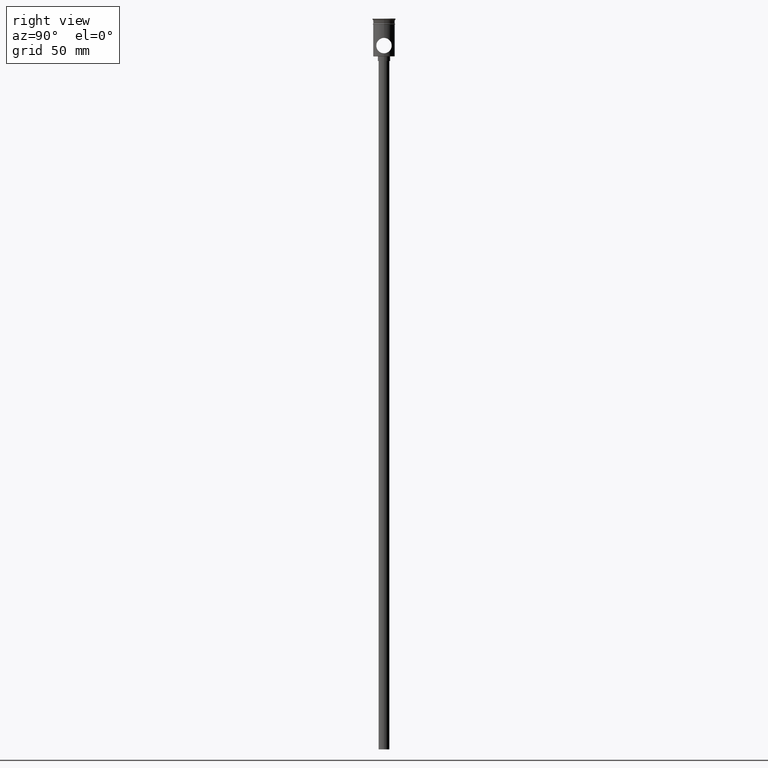
[diagram: clean part render]
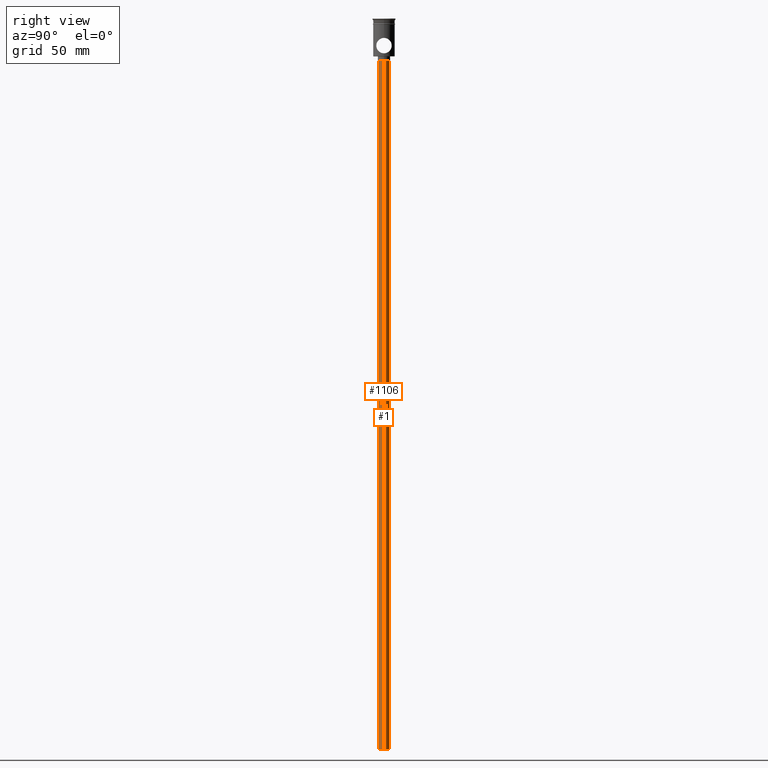
[diagram: same view with one multi-face feature highlighted, each face labeled with its STEP entity id]
A machine part, right view. The highlighted faces form ONE feature: a constant-radius fillet chain: 2 tangent blend faces with common blend radius 3.5 mm. The faces share edges in the B-rep.
Their STEP definitions:
[1] entity #1106 (Cylinder):
#76 = EDGE_CURVE ( 'NONE', #839, #674, #698, .T. ) ;
#90 = CARTESIAN_POINT ( 'NONE',  ( -3.500000000000000444, 4.286263797015737088E-16, -474.5000000000000568 ) ) ;
#95 = FACE_OUTER_BOUND ( 'NONE', #452, .T. ) ;
#107 = DIRECTION ( 'NONE',  ( -1.000000000000000000, 0.000000000000000000, 0.000000000000000000 ) ) ;
#108 = DIRECTION ( 'NONE',  ( 1.000000000000000000, 0.000000000000000000, 0.000000000000000000 ) ) ;
#119 = CARTESIAN_POINT ( 'NONE',  ( 3.500000000000000444, 0.000000000000000000, -27.50000000000000000 ) ) ;
#246 = LINE ( 'NONE', #1268, #1243 ) ;
#270 = EDGE_CURVE ( 'NONE', #1189, #839, #1049, .T. ) ;
#335 = DIRECTION ( 'NONE',  ( -0.000000000000000000, -0.000000000000000000, 1.000000000000000000 ) ) ;
#452 = EDGE_LOOP ( 'NONE', ( #935, #811, #1167, #1404 ) ) ;
#516 = DIRECTION ( 'NONE',  ( -0.000000000000000000, -0.000000000000000000, 1.000000000000000000 ) ) ;
#538 = EDGE_CURVE ( 'NONE', #1179, #674, #1216, .T. ) ;
#661 = AXIS2_PLACEMENT_3D ( 'NONE', #1473, #1368, #108 ) ;
#674 = VERTEX_POINT ( 'NONE', #1434 ) ;
#698 = LINE ( 'NONE', #736, #1125 ) ;
#710 = CARTESIAN_POINT ( 'NONE',  ( 3.500000000000000444, 0.000000000000000000, -474.5000000000000568 ) ) ;
#736 = CARTESIAN_POINT ( 'NONE',  ( -3.500000000000000444, 4.286263797015737088E-16, -474.5000000000000568 ) ) ;
#811 = ORIENTED_EDGE ( 'NONE', *, *, #270, .F. ) ;
#839 = VERTEX_POINT ( 'NONE', #90 ) ;
#883 = DIRECTION ( 'NONE',  ( 0.000000000000000000, 0.000000000000000000, -1.000000000000000000 ) ) ;
#935 = ORIENTED_EDGE ( 'NONE', *, *, #76, .F. ) ;
#997 = AXIS2_PLACEMENT_3D ( 'NONE', #1461, #883, #1143 ) ;
#1006 = DIRECTION ( 'NONE',  ( 0.000000000000000000, 0.000000000000000000, -1.000000000000000000 ) ) ;
#1007 = CYLINDRICAL_SURFACE ( 'NONE', #661, 3.500000000000000444 ) ;
#1049 = CIRCLE ( 'NONE', #1416, 3.500000000000000444 ) ;
#1106 = ADVANCED_FACE ( 'NONE', ( #95 ), #1007, .T. ) ;
#1113 = EDGE_CURVE ( 'NONE', #1189, #1179, #246, .T. ) ;
#1125 = VECTOR ( 'NONE', #516, 1000.000000000000000 ) ;
#1143 = DIRECTION ( 'NONE',  ( -1.000000000000000000, 0.000000000000000000, 0.000000000000000000 ) ) ;
#1162 = CARTESIAN_POINT ( 'NONE',  ( 0.000000000000000000, 0.000000000000000000, -474.5000000000000568 ) ) ;
#1167 = ORIENTED_EDGE ( 'NONE', *, *, #1113, .T. ) ;
#1179 = VERTEX_POINT ( 'NONE', #119 ) ;
#1189 = VERTEX_POINT ( 'NONE', #710 ) ;
#1216 = CIRCLE ( 'NONE', #997, 3.500000000000000444 ) ;
#1243 = VECTOR ( 'NONE', #335, 1000.000000000000000 ) ;
#1268 = CARTESIAN_POINT ( 'NONE',  ( 3.500000000000000444, 0.000000000000000000, -474.5000000000000568 ) ) ;
#1368 = DIRECTION ( 'NONE',  ( -0.000000000000000000, -0.000000000000000000, 1.000000000000000000 ) ) ;
#1404 = ORIENTED_EDGE ( 'NONE', *, *, #538, .T. ) ;
#1416 = AXIS2_PLACEMENT_3D ( 'NONE', #1162, #1006, #107 ) ;
#1434 = CARTESIAN_POINT ( 'NONE',  ( -3.500000000000000444, 4.286263797015737088E-16, -27.50000000000000000 ) ) ;
#1461 = CARTESIAN_POINT ( 'NONE',  ( 0.000000000000000000, 0.000000000000000000, -27.50000000000000000 ) ) ;
#1473 = CARTESIAN_POINT ( 'NONE',  ( 0.000000000000000000, 0.000000000000000000, -474.5000000000000568 ) ) ;
[2] entity #1 (Cylinder):
#1 = ADVANCED_FACE ( 'NONE', ( #737 ), #1081, .T. ) ;
#53 = DIRECTION ( 'NONE',  ( -0.000000000000000000, -0.000000000000000000, 1.000000000000000000 ) ) ;
#59 = CARTESIAN_POINT ( 'NONE',  ( 0.000000000000000000, 0.000000000000000000, -474.5000000000000568 ) ) ;
#76 = EDGE_CURVE ( 'NONE', #839, #674, #698, .T. ) ;
#78 = EDGE_LOOP ( 'NONE', ( #250, #612, #702, #309 ) ) ;
#90 = CARTESIAN_POINT ( 'NONE',  ( -3.500000000000000444, 4.286263797015737088E-16, -474.5000000000000568 ) ) ;
#119 = CARTESIAN_POINT ( 'NONE',  ( 3.500000000000000444, 0.000000000000000000, -27.50000000000000000 ) ) ;
#184 = CIRCLE ( 'NONE', #1025, 3.500000000000000444 ) ;
#207 = AXIS2_PLACEMENT_3D ( 'NONE', #1279, #592, #1183 ) ;
#246 = LINE ( 'NONE', #1268, #1243 ) ;
#250 = ORIENTED_EDGE ( 'NONE', *, *, #1405, .F. ) ;
#309 = ORIENTED_EDGE ( 'NONE', *, *, #1113, .F. ) ;
#335 = DIRECTION ( 'NONE',  ( -0.000000000000000000, -0.000000000000000000, 1.000000000000000000 ) ) ;
#422 = CARTESIAN_POINT ( 'NONE',  ( 0.000000000000000000, 0.000000000000000000, -474.5000000000000568 ) ) ;
#503 = DIRECTION ( 'NONE',  ( 1.000000000000000000, 0.000000000000000000, 0.000000000000000000 ) ) ;
#516 = DIRECTION ( 'NONE',  ( -0.000000000000000000, -0.000000000000000000, 1.000000000000000000 ) ) ;
#592 = DIRECTION ( 'NONE',  ( 0.000000000000000000, 0.000000000000000000, -1.000000000000000000 ) ) ;
#612 = ORIENTED_EDGE ( 'NONE', *, *, #76, .T. ) ;
#674 = VERTEX_POINT ( 'NONE', #1434 ) ;
#698 = LINE ( 'NONE', #736, #1125 ) ;
#702 = ORIENTED_EDGE ( 'NONE', *, *, #1190, .T. ) ;
#710 = CARTESIAN_POINT ( 'NONE',  ( 3.500000000000000444, 0.000000000000000000, -474.5000000000000568 ) ) ;
#736 = CARTESIAN_POINT ( 'NONE',  ( -3.500000000000000444, 4.286263797015737088E-16, -474.5000000000000568 ) ) ;
#737 = FACE_OUTER_BOUND ( 'NONE', #78, .T. ) ;
#745 = DIRECTION ( 'NONE',  ( -1.000000000000000000, 0.000000000000000000, 0.000000000000000000 ) ) ;
#839 = VERTEX_POINT ( 'NONE', #90 ) ;
#884 = DIRECTION ( 'NONE',  ( 0.000000000000000000, 0.000000000000000000, -1.000000000000000000 ) ) ;
#1025 = AXIS2_PLACEMENT_3D ( 'NONE', #422, #884, #745 ) ;
#1081 = CYLINDRICAL_SURFACE ( 'NONE', #1483, 3.500000000000000444 ) ;
#1113 = EDGE_CURVE ( 'NONE', #1189, #1179, #246, .T. ) ;
#1125 = VECTOR ( 'NONE', #516, 1000.000000000000000 ) ;
#1179 = VERTEX_POINT ( 'NONE', #119 ) ;
#1183 = DIRECTION ( 'NONE',  ( -1.000000000000000000, 0.000000000000000000, 0.000000000000000000 ) ) ;
#1189 = VERTEX_POINT ( 'NONE', #710 ) ;
#1190 = EDGE_CURVE ( 'NONE', #674, #1179, #1337, .T. ) ;
#1243 = VECTOR ( 'NONE', #335, 1000.000000000000000 ) ;
#1268 = CARTESIAN_POINT ( 'NONE',  ( 3.500000000000000444, 0.000000000000000000, -474.5000000000000568 ) ) ;
#1279 = CARTESIAN_POINT ( 'NONE',  ( 0.000000000000000000, 0.000000000000000000, -27.50000000000000000 ) ) ;
#1337 = CIRCLE ( 'NONE', #207, 3.500000000000000444 ) ;
#1405 = EDGE_CURVE ( 'NONE', #839, #1189, #184, .T. ) ;
#1434 = CARTESIAN_POINT ( 'NONE',  ( -3.500000000000000444, 4.286263797015737088E-16, -27.50000000000000000 ) ) ;
#1483 = AXIS2_PLACEMENT_3D ( 'NONE', #59, #53, #503 ) ;